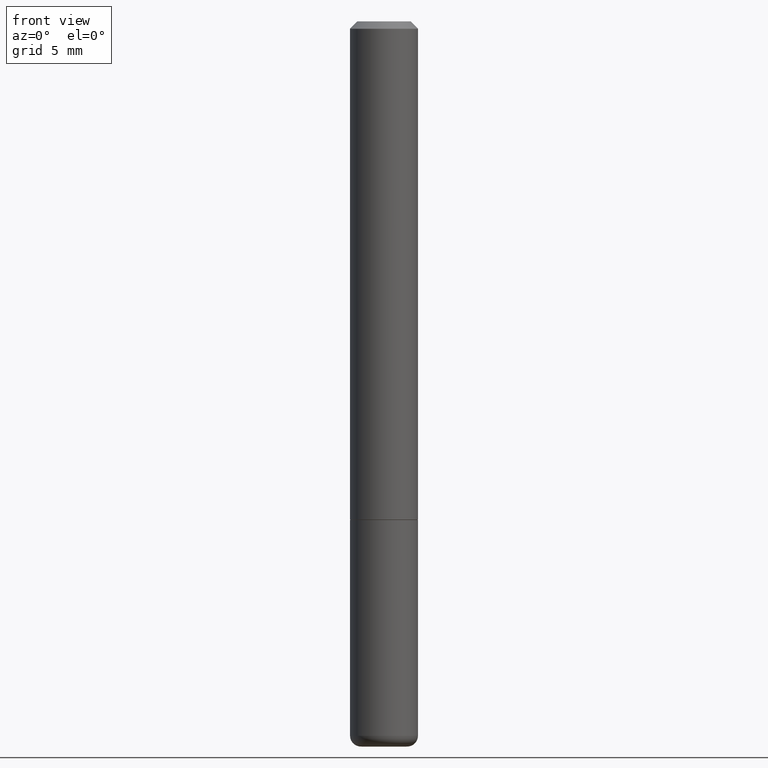
[diagram: clean part render]
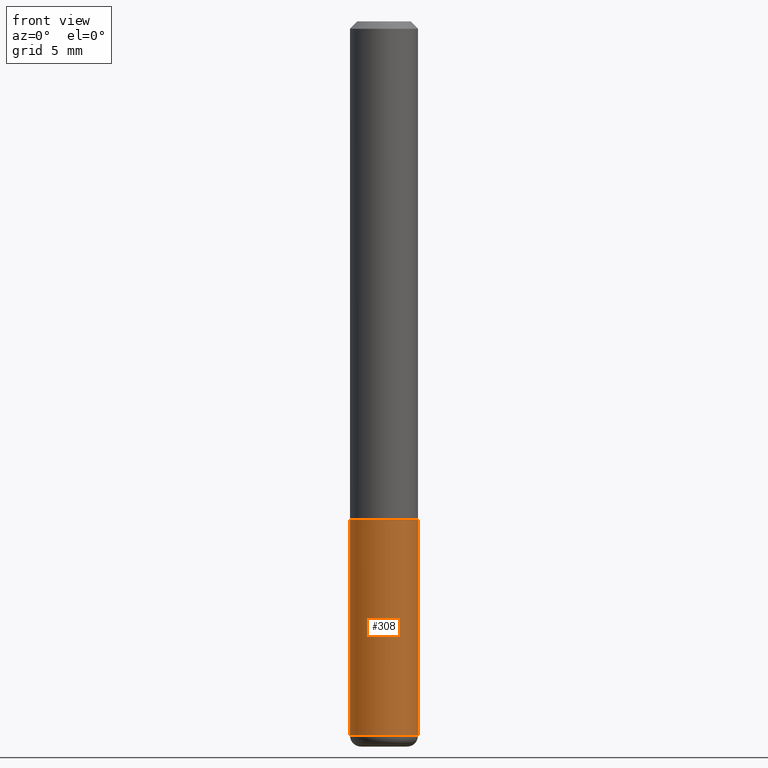
[diagram: same view with one face highlighted and labeled with its STEP entity id]
A machine part, front view. The second image highlights one B-rep face of the part: STEP entity #308.
In plain terms, the highlighted cylindrical surface (edge-blend (fillet) strip) has radius 2.3812 mm, axis along (-0, 0, 1).
Its self-contained STEP definition (entity closure, byte-faithful):
#2 = DIRECTION ( 'NONE',  ( -2.445468806185136597E-29, 3.491481338843145583E-15, 1.000000000000000000 ) ) ;
#14 = ORIENTED_EDGE ( 'NONE', *, *, #151, .T. ) ;
#19 = VERTEX_POINT ( 'NONE', #65 ) ;
#36 = EDGE_CURVE ( 'NONE', #259, #381, #93, .T. ) ;
#41 = DIRECTION ( 'NONE',  ( 1.000000000000000000, -6.982962677686261189E-15, 0.000000000000000000 ) ) ;
#47 = AXIS2_PLACEMENT_3D ( 'NONE', #144, #2, #41 ) ;
#65 = CARTESIAN_POINT ( 'NONE',  ( 0.09374999999999998612, -7.533014537168982211E-15, -1.970041113957362811 ) ) ;
#91 = EDGE_LOOP ( 'NONE', ( #327, #159, #14, #305 ) ) ;
#93 = LINE ( 'NONE', #233, #218 ) ;
#109 = VECTOR ( 'NONE', #423, 39.37007874015748143 ) ;
#115 = CIRCLE ( 'NONE', #433, 0.09374999999999998612 ) ;
#144 = CARTESIAN_POINT ( 'NONE',  ( 3.362519608504562260E-29, -4.800786840909324930E-15, -1.375000000000000000 ) ) ;
#151 = EDGE_CURVE ( 'NONE', #19, #273, #362, .T. ) ;
#159 = ORIENTED_EDGE ( 'NONE', *, *, #430, .T. ) ;
#178 = AXIS2_PLACEMENT_3D ( 'NONE', #214, #321, #389 ) ;
#214 = CARTESIAN_POINT ( 'NONE',  ( 0.000000000000000000, 0.000000000000000000, 0.000000000000000000 ) ) ;
#218 = VECTOR ( 'NONE', #370, 39.37007874015748143 ) ;
#226 = CARTESIAN_POINT ( 'NONE',  ( 0.09374999999999998612, -6.546527510330874055E-16, 4.571415727308689105E-30 ) ) ;
#232 = CARTESIAN_POINT ( 'NONE',  ( -0.09374999999999998612, -5.173440498747515894E-15, -1.970041113957362811 ) ) ;
#233 = CARTESIAN_POINT ( 'NONE',  ( -0.09374999999999998612, 6.661338147750938256E-16, -4.611501647113973295E-30 ) ) ;
#259 = VERTEX_POINT ( 'NONE', #232 ) ;
#273 = VERTEX_POINT ( 'NONE', #373 ) ;
#302 = EDGE_CURVE ( 'NONE', #381, #273, #325, .T. ) ;
#305 = ORIENTED_EDGE ( 'NONE', *, *, #302, .F. ) ;
#308 = ADVANCED_FACE ( 'NONE', ( #421 ), #313, .T. ) ;
#313 = CYLINDRICAL_SURFACE ( 'NONE', #178, 0.09374999999999998612 ) ;
#316 = CARTESIAN_POINT ( 'NONE',  ( 4.817674091084948534E-29, -6.878361786135894707E-15, -1.970041113957362811 ) ) ;
#321 = DIRECTION ( 'NONE',  ( -2.445468806185136597E-29, 3.491481338843145583E-15, 1.000000000000000000 ) ) ;
#325 = CIRCLE ( 'NONE', #47, 0.09375000000000001388 ) ;
#327 = ORIENTED_EDGE ( 'NONE', *, *, #36, .F. ) ;
#348 = CARTESIAN_POINT ( 'NONE',  ( -0.09375000000000001388, -5.173440498747515894E-15, -1.375000000000000000 ) ) ;
#352 = DIRECTION ( 'NONE',  ( 1.000000000000000000, -6.982962677686263555E-15, 0.000000000000000000 ) ) ;
#362 = LINE ( 'NONE', #226, #109 ) ;
#370 = DIRECTION ( 'NONE',  ( -2.445468806185136877E-29, 3.491481338843145188E-15, 1.000000000000000000 ) ) ;
#373 = CARTESIAN_POINT ( 'NONE',  ( 0.09375000000000001388, -5.455439591942412434E-15, -1.375000000000000000 ) ) ;
#381 = VERTEX_POINT ( 'NONE', #348 ) ;
#388 = DIRECTION ( 'NONE',  ( -2.445468806185136597E-29, 3.491481338843145583E-15, 1.000000000000000000 ) ) ;
#389 = DIRECTION ( 'NONE',  ( 1.000000000000000000, -6.982962677686266711E-15, 4.876176775795935793E-29 ) ) ;
#421 = FACE_OUTER_BOUND ( 'NONE', #91, .T. ) ;
#423 = DIRECTION ( 'NONE',  ( -2.445468806185136877E-29, 3.491481338843145188E-15, 1.000000000000000000 ) ) ;
#430 = EDGE_CURVE ( 'NONE', #259, #19, #115, .T. ) ;
#433 = AXIS2_PLACEMENT_3D ( 'NONE', #316, #388, #352 ) ;